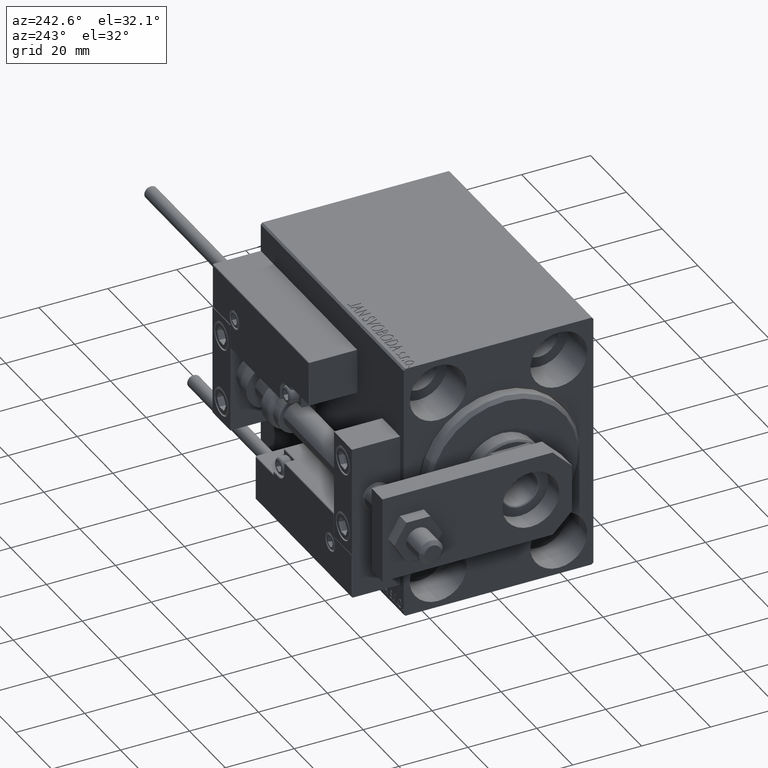
[diagram: clean part render]
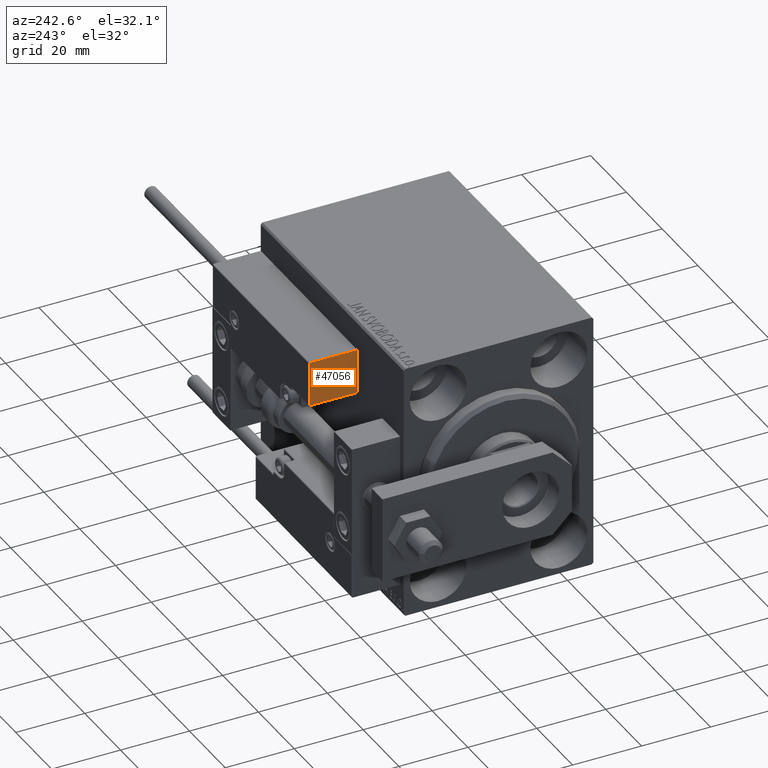
[diagram: same view with one face highlighted and labeled with its STEP entity id]
A machine part, auxiliary view. The second image highlights one B-rep face of the part: STEP entity #47056.
In plain terms, the highlighted planar face has unit normal (1, -0, -0).
Its self-contained STEP definition (entity closure, byte-faithful):
#3036 = DIRECTION ( 'NONE',  ( -0.000000000000000000, -1.000000000000000000, -0.000000000000000000 ) ) ;
#3721 = EDGE_CURVE ( 'NONE', #36586, #33212, #6945, .T. ) ;
#4058 = FACE_OUTER_BOUND ( 'NONE', #30519, .T. ) ;
#4551 = DIRECTION ( 'NONE',  ( -1.000000000000000000, 0.000000000000000000, 0.000000000000000000 ) ) ;
#6255 = ORIENTED_EDGE ( 'NONE', *, *, #28134, .T. ) ;
#6945 = LINE ( 'NONE', #15612, #21424 ) ;
#15612 = CARTESIAN_POINT ( 'NONE',  ( 27.00000000000006395, 20.00000000000001776, 14.00000000000000000 ) ) ;
#16234 = CARTESIAN_POINT ( 'NONE',  ( 27.00000000000006395, 20.00000000000001776, 13.70000000000000107 ) ) ;
#19214 = CARTESIAN_POINT ( 'NONE',  ( 27.00000000000006395, 7.000000000000007994, 13.70000000000000107 ) ) ;
#19607 = CARTESIAN_POINT ( 'NONE',  ( 27.00000000000006395, 7.000000000000007994, 14.00000000000000000 ) ) ;
#20103 = DIRECTION ( 'NONE',  ( 0.000000000000000000, 0.000000000000000000, 1.000000000000000000 ) ) ;
#21424 = VECTOR ( 'NONE', #27322, 1000.000000000000000 ) ;
#21921 = CARTESIAN_POINT ( 'NONE',  ( 27.00000000000006395, 7.000000000000007994, 0.000000000000000000 ) ) ;
#22908 = LINE ( 'NONE', #38161, #32857 ) ;
#23318 = VECTOR ( 'NONE', #33604, 1000.000000000000000 ) ;
#24880 = VECTOR ( 'NONE', #48095, 1000.000000000000000 ) ;
#26229 = LINE ( 'NONE', #21921, #23318 ) ;
#27322 = DIRECTION ( 'NONE',  ( -0.000000000000000000, -0.000000000000000000, -1.000000000000000000 ) ) ;
#27658 = ORIENTED_EDGE ( 'NONE', *, *, #49674, .T. ) ;
#27735 = PLANE ( 'NONE',  #40293 ) ;
#28134 = EDGE_CURVE ( 'NONE', #36586, #31336, #22908, .T. ) ;
#30519 = EDGE_LOOP ( 'NONE', ( #45429, #6255, #35080, #27658 ) ) ;
#31336 = VERTEX_POINT ( 'NONE', #19214 ) ;
#31764 = EDGE_CURVE ( 'NONE', #31336, #41052, #43548, .T. ) ;
#32857 = VECTOR ( 'NONE', #3036, 1000.000000000000000 ) ;
#33212 = VERTEX_POINT ( 'NONE', #42620 ) ;
#33604 = DIRECTION ( 'NONE',  ( 0.000000000000000000, 1.000000000000000000, 0.000000000000000000 ) ) ;
#35080 = ORIENTED_EDGE ( 'NONE', *, *, #31764, .T. ) ;
#36586 = VERTEX_POINT ( 'NONE', #16234 ) ;
#38161 = CARTESIAN_POINT ( 'NONE',  ( 27.00000000000006395, 7.000000000000007994, 13.70000000000000107 ) ) ;
#39728 = CARTESIAN_POINT ( 'NONE',  ( 27.00000000000006395, 7.000000000000007994, 14.00000000000000000 ) ) ;
#40293 = AXIS2_PLACEMENT_3D ( 'NONE', #19607, #4551, #20103 ) ;
#41052 = VERTEX_POINT ( 'NONE', #49837 ) ;
#42620 = CARTESIAN_POINT ( 'NONE',  ( 27.00000000000006395, 20.00000000000001776, 0.000000000000000000 ) ) ;
#43548 = LINE ( 'NONE', #39728, #24880 ) ;
#45429 = ORIENTED_EDGE ( 'NONE', *, *, #3721, .F. ) ;
#47056 = ADVANCED_FACE ( 'NONE', ( #4058 ), #27735, .F. ) ;
#48095 = DIRECTION ( 'NONE',  ( -0.000000000000000000, -0.000000000000000000, -1.000000000000000000 ) ) ;
#49674 = EDGE_CURVE ( 'NONE', #41052, #33212, #26229, .T. ) ;
#49837 = CARTESIAN_POINT ( 'NONE',  ( 27.00000000000006395, 7.000000000000007994, 0.000000000000000000 ) ) ;